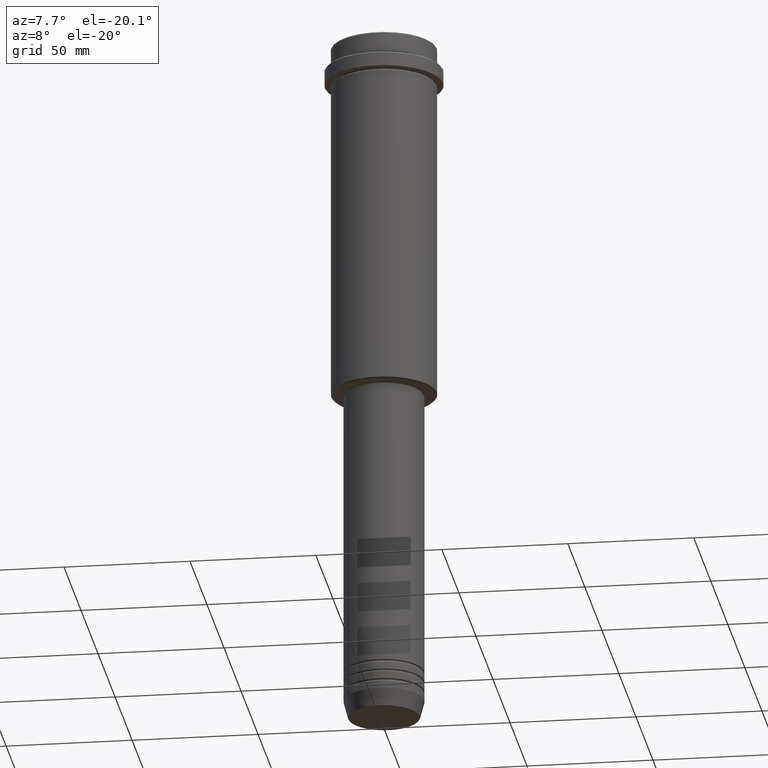
[diagram: clean part render]
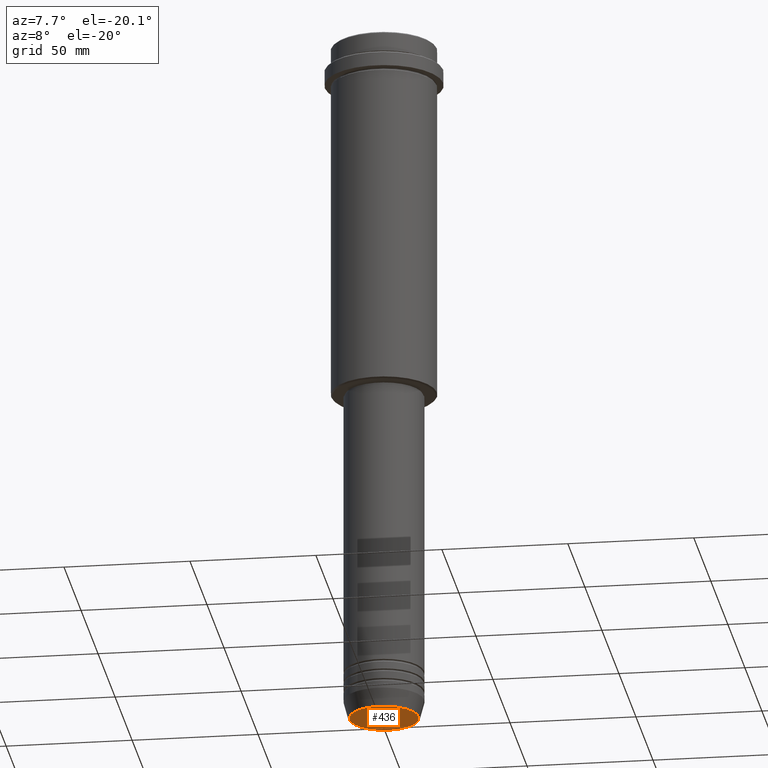
[diagram: same view with one face highlighted and labeled with its STEP entity id]
A machine part, auxiliary view. The second image highlights one B-rep face of the part: STEP entity #436.
In plain terms, the highlighted planar face has unit normal (0, -0, 1).
Its self-contained STEP definition (entity closure, byte-faithful):
#39 = EDGE_CURVE ( 'NONE', #713, #245, #897, .T. ) ;
#129 = CARTESIAN_POINT ( 'NONE',  ( -13.74069215899265828, 1.712322416342415986E-15, -280.0000000000000000 ) ) ;
#224 = AXIS2_PLACEMENT_3D ( 'NONE', #236, #269, #250 ) ;
#236 = CARTESIAN_POINT ( 'NONE',  ( 0.000000000000000000, 0.000000000000000000, -280.0000000000000000 ) ) ;
#245 = VERTEX_POINT ( 'NONE', #566 ) ;
#250 = DIRECTION ( 'NONE',  ( 1.000000000000000000, 0.000000000000000000, 0.000000000000000000 ) ) ;
#269 = DIRECTION ( 'NONE',  ( 0.000000000000000000, 0.000000000000000000, -1.000000000000000000 ) ) ;
#287 = ORIENTED_EDGE ( 'NONE', *, *, #926, .T. ) ;
#292 = CARTESIAN_POINT ( 'NONE',  ( 0.000000000000000000, 0.000000000000000000, -280.0000000000000000 ) ) ;
#406 = CARTESIAN_POINT ( 'NONE',  ( 0.000000000000000000, 0.000000000000000000, -280.0000000000000000 ) ) ;
#436 = ADVANCED_FACE ( 'NONE', ( #821 ), #524, .F. ) ;
#497 = DIRECTION ( 'NONE',  ( 0.000000000000000000, -0.000000000000000000, 1.000000000000000000 ) ) ;
#524 = PLANE ( 'NONE',  #1312 ) ;
#566 = CARTESIAN_POINT ( 'NONE',  ( 13.74069215899265828, 0.000000000000000000, -280.0000000000000000 ) ) ;
#713 = VERTEX_POINT ( 'NONE', #129 ) ;
#754 = CIRCLE ( 'NONE', #803, 13.74069215899265828 ) ;
#803 = AXIS2_PLACEMENT_3D ( 'NONE', #292, #823, #1364 ) ;
#821 = FACE_OUTER_BOUND ( 'NONE', #1353, .T. ) ;
#823 = DIRECTION ( 'NONE',  ( 0.000000000000000000, 0.000000000000000000, -1.000000000000000000 ) ) ;
#897 = CIRCLE ( 'NONE', #224, 13.74069215899265828 ) ;
#926 = EDGE_CURVE ( 'NONE', #245, #713, #754, .T. ) ;
#930 = DIRECTION ( 'NONE',  ( 1.000000000000000000, 0.000000000000000000, 0.000000000000000000 ) ) ;
#1312 = AXIS2_PLACEMENT_3D ( 'NONE', #406, #497, #930 ) ;
#1333 = ORIENTED_EDGE ( 'NONE', *, *, #39, .T. ) ;
#1353 = EDGE_LOOP ( 'NONE', ( #287, #1333 ) ) ;
#1364 = DIRECTION ( 'NONE',  ( 1.000000000000000000, 0.000000000000000000, 0.000000000000000000 ) ) ;